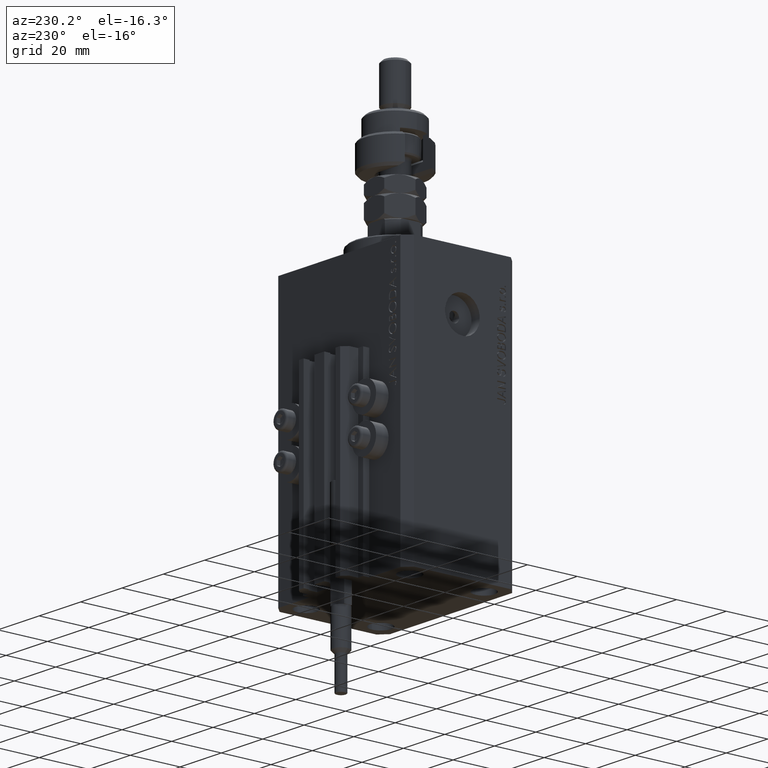
[diagram: clean part render]
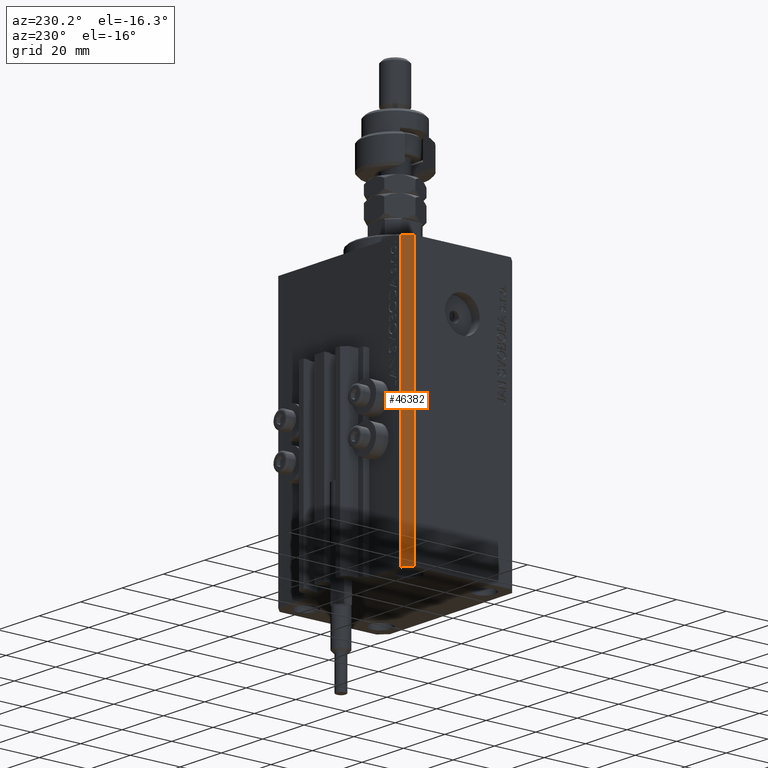
[diagram: same view with one face highlighted and labeled with its STEP entity id]
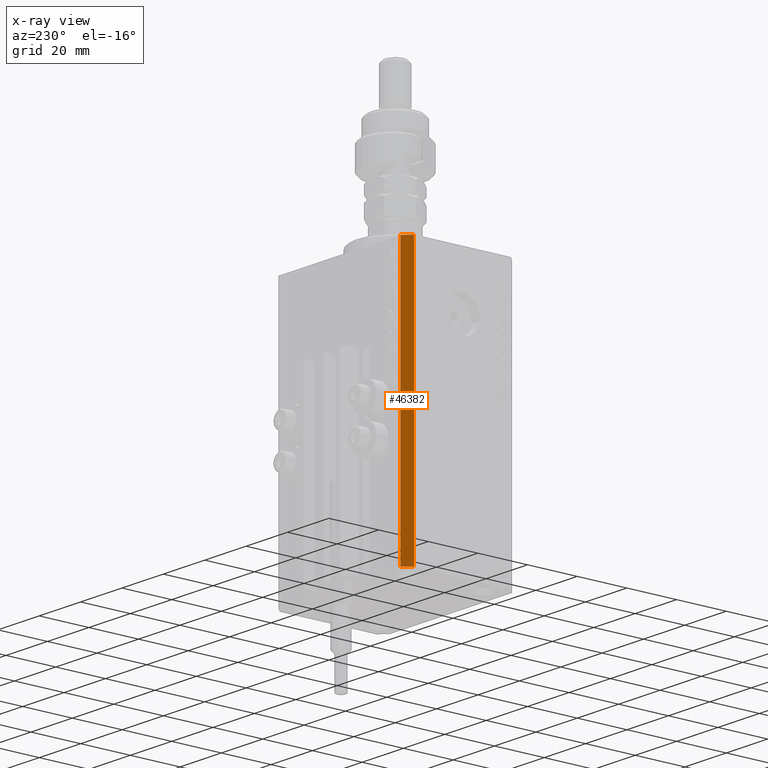
[diagram: x-ray of the same camera — body ghosted, the highlighted face saturated]
A machine part, auxiliary view. The second image highlights one B-rep face of the part: STEP entity #46382.
The next image is the same camera in x-ray: the body ghosted, the highlighted face saturated — about 0% of this face is hidden behind the body in this view.
In plain terms, the highlighted planar face has unit normal (-0.7071, 0.7071, 0).
Its self-contained STEP definition (entity closure, byte-faithful):
#311 = LINE ( 'NONE', #43494, #26032 ) ;
#1483 = CARTESIAN_POINT ( 'NONE',  ( -32.49999999999650413, 19.49999999999949907, -107.0000000000000000 ) ) ;
#2992 = CARTESIAN_POINT ( 'NONE',  ( -29.49999999999650413, 22.49999999999949907, 0.000000000000000000 ) ) ;
#3209 = FACE_OUTER_BOUND ( 'NONE', #49971, .T. ) ;
#4722 = ORIENTED_EDGE ( 'NONE', *, *, #13651, .F. ) ;
#5977 = LINE ( 'NONE', #21861, #12744 ) ;
#7100 = LINE ( 'NONE', #34819, #16994 ) ;
#7585 = ORIENTED_EDGE ( 'NONE', *, *, #13070, .F. ) ;
#10698 = DIRECTION ( 'NONE',  ( -0.7071067811865474617, -0.7071067811865474617, 0.000000000000000000 ) ) ;
#11395 = CARTESIAN_POINT ( 'NONE',  ( -29.49999999999650413, 22.49999999999949907, -107.0000000000000000 ) ) ;
#12744 = VECTOR ( 'NONE', #29593, 1000.000000000000000 ) ;
#13070 = EDGE_CURVE ( 'NONE', #43278, #43661, #311, .T. ) ;
#13651 = EDGE_CURVE ( 'NONE', #43661, #42535, #7100, .T. ) ;
#14646 = VERTEX_POINT ( 'NONE', #1483 ) ;
#14769 = DIRECTION ( 'NONE',  ( -0.7071067811865474617, -0.7071067811865474617, 0.000000000000000000 ) ) ;
#16994 = VECTOR ( 'NONE', #10698, 1000.000000000000114 ) ;
#19367 = AXIS2_PLACEMENT_3D ( 'NONE', #50228, #31204, #14769 ) ;
#21861 = CARTESIAN_POINT ( 'NONE',  ( -32.49999999999650413, 19.49999999999949907, -107.0000000000000000 ) ) ;
#22698 = LINE ( 'NONE', #11395, #37651 ) ;
#23574 = CARTESIAN_POINT ( 'NONE',  ( -29.49999999999650413, 22.49999999999949907, -107.0000000000000000 ) ) ;
#26032 = VECTOR ( 'NONE', #27039, 1000.000000000000000 ) ;
#27039 = DIRECTION ( 'NONE',  ( 0.000000000000000000, 0.000000000000000000, 1.000000000000000000 ) ) ;
#27059 = DIRECTION ( 'NONE',  ( -0.7071067811865474617, -0.7071067811865474617, 0.000000000000000000 ) ) ;
#27461 = ORIENTED_EDGE ( 'NONE', *, *, #39043, .T. ) ;
#29593 = DIRECTION ( 'NONE',  ( 0.000000000000000000, 0.000000000000000000, 1.000000000000000000 ) ) ;
#31204 = DIRECTION ( 'NONE',  ( -0.7071067811865475727, 0.7071067811865475727, 0.000000000000000000 ) ) ;
#34819 = CARTESIAN_POINT ( 'NONE',  ( -29.49999999999650413, 22.49999999999949907, 0.000000000000000000 ) ) ;
#37651 = VECTOR ( 'NONE', #27059, 1000.000000000000114 ) ;
#38924 = PLANE ( 'NONE',  #19367 ) ;
#39043 = EDGE_CURVE ( 'NONE', #14646, #42535, #5977, .T. ) ;
#39746 = EDGE_CURVE ( 'NONE', #43278, #14646, #22698, .T. ) ;
#41126 = ORIENTED_EDGE ( 'NONE', *, *, #39746, .T. ) ;
#42535 = VERTEX_POINT ( 'NONE', #43012 ) ;
#43012 = CARTESIAN_POINT ( 'NONE',  ( -32.49999999999650413, 19.49999999999949907, 0.000000000000000000 ) ) ;
#43278 = VERTEX_POINT ( 'NONE', #23574 ) ;
#43494 = CARTESIAN_POINT ( 'NONE',  ( -29.49999999999650413, 22.49999999999949907, -107.0000000000000000 ) ) ;
#43661 = VERTEX_POINT ( 'NONE', #2992 ) ;
#46382 = ADVANCED_FACE ( 'NONE', ( #3209 ), #38924, .T. ) ;
#49971 = EDGE_LOOP ( 'NONE', ( #4722, #7585, #41126, #27461 ) ) ;
#50228 = CARTESIAN_POINT ( 'NONE',  ( -29.49999999999650413, 22.49999999999949907, -107.0000000000000000 ) ) ;